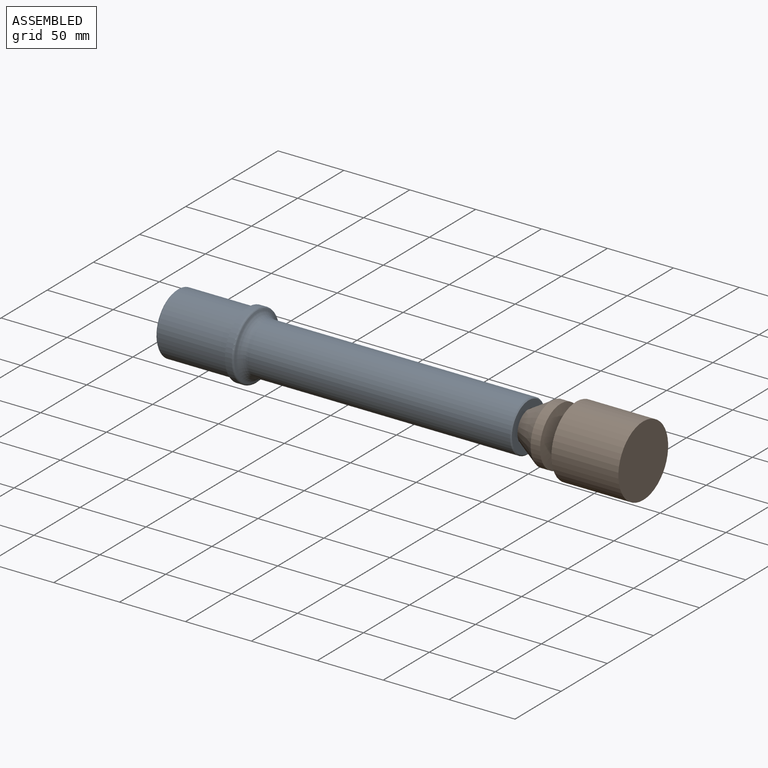
[diagram: assembled view]
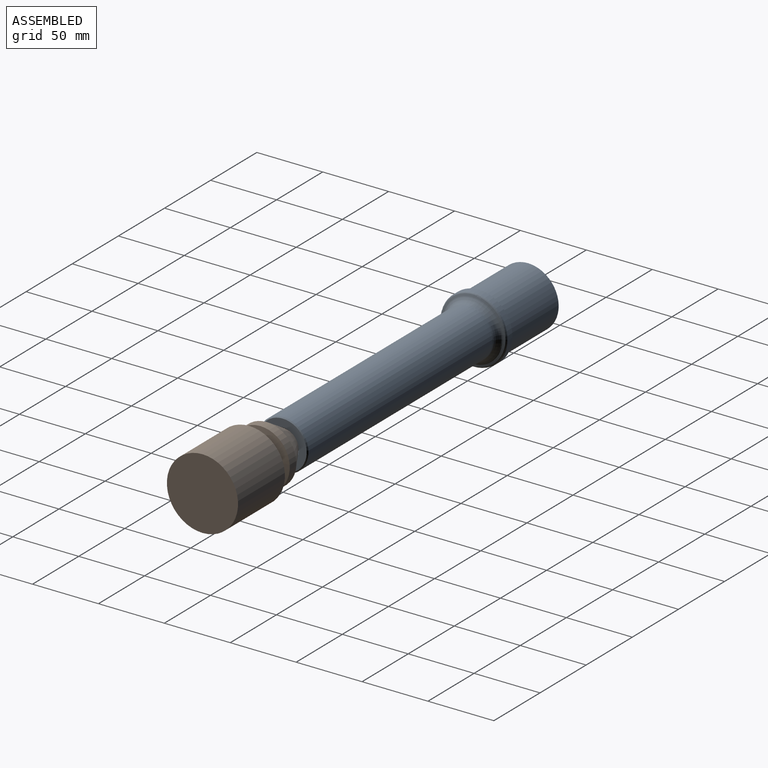
[diagram: assembled view, second angle]
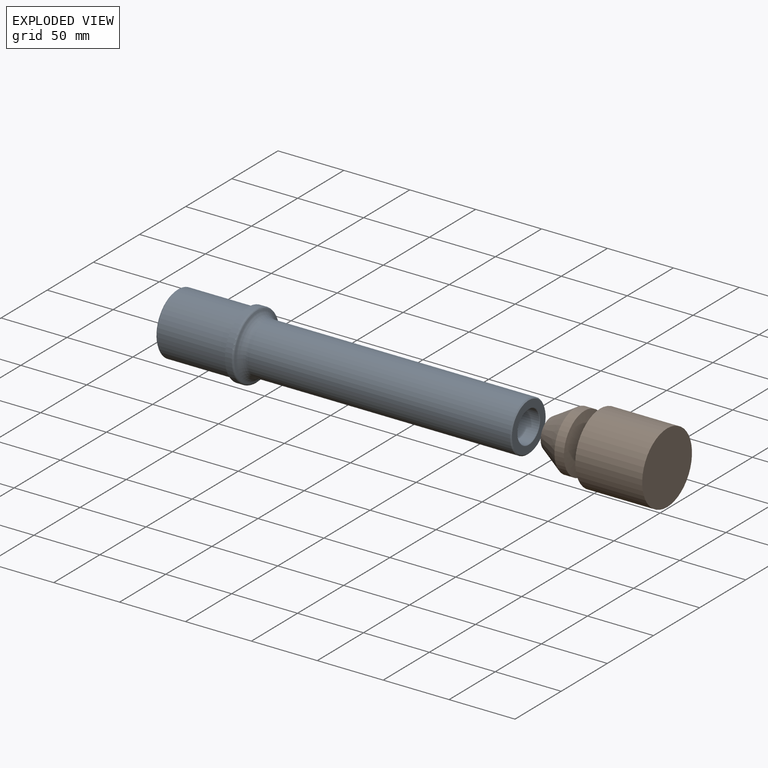
[diagram: exploded view]
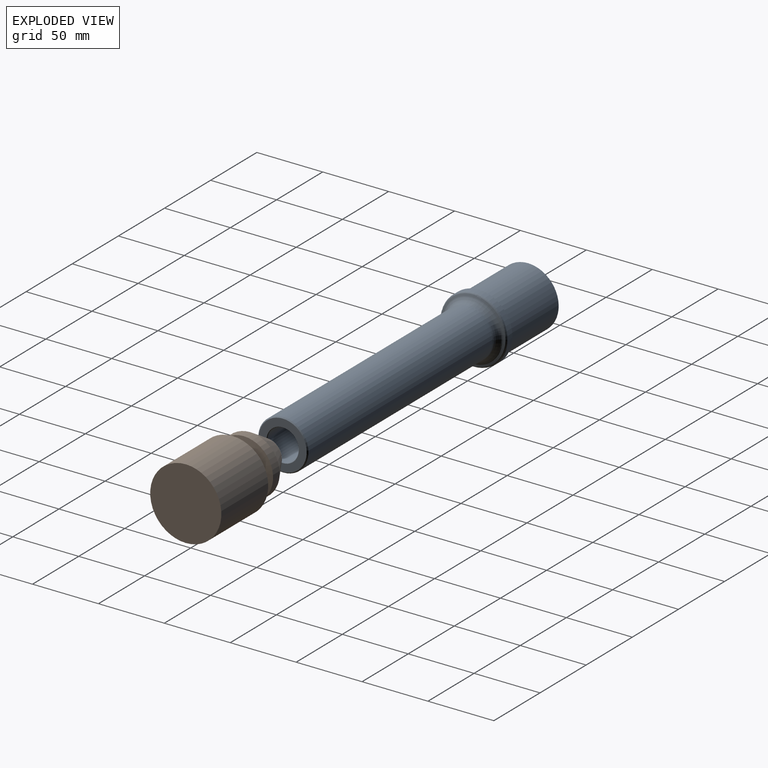
[diagram: exploded view, second angle]
ASSEMBLY  parts=2 mates=2
PART A: 14 faces, bbox 55x55x266.7 mm
  f0: plane 45.73x44.9mm, normal (0,0,-1), area 1583mm2, adj f1
  f1: cone r=22.84mm half-angle=45deg, axis (0,0,1), area 161.1mm2, adj f0,f2
  f2: cylinder r=23.24mm len=53.18mm, axis (0,0,-1), area 7765.9mm2, adj f1,f3
  f3: plane 51.74x50.8mm, normal (0,0,-1), area 329.9mm2, adj f2,f4
  f4: cylinder r=25.4mm len=50.8mm, axis (0,0,-1), area 785.7mm2, adj f3,f6
  f5: plane 24.25x23.81mm, normal (0,0,1), area 445.3mm2, adj f7
  f6: torus R=23.81mm, axis (0,0,-1), area 340.8mm2, adj f4,f8
  f7: cylinder r=11.91mm len=75.82mm, axis (0,0,-1), area 5672mm2, adj f5,f12,f13
  f8: torus R=25.4mm, axis (0,0,1), area 1139.6mm2, adj f6,f10
  f9: plane 37.19x36.51mm, normal (0,0,1), area 572.8mm2, adj f11,f12,f13
  f10: cylinder r=19.05mm len=199.23mm, axis (0,0,1), area 23846.9mm2, adj f8,f11
  f11: cone r=18.65mm half-angle=45deg, axis (0,0,-1), area 131.6mm2, adj f9,f10
  f12: cone r=11.91mm half-angle=45deg, axis (0,0,1), area 20.5mm2, adj f7,f9,f13
  f13: cone r=11.91mm half-angle=45deg, axis (0,0,1), area 20.5mm2, adj f7,f9,f12
PART B: 10 faces, bbox 88x54x54 mm
  f0: plane 22.61x22.61mm, normal (-1,0,0), area 401.4mm2, adj f9
  f1: plane 53.98x53.98mm, normal (1,0,0), area 2288.1mm2, adj f2
  f2: cylinder r=26.99mm len=53.98mm, axis (-1,0,0), area 8614mm2, adj f1,f3
  f3: plane 53.98x53.98mm, normal (-1,0,0), area 1798.5mm2, adj f2,f4
  f4: cylinder r=12.48mm len=24.97mm, axis (-1,0,0), area 374.6mm2, adj f3,f5
  f5: plane 24.97x24.97mm, normal (-1,0,0), area 362.9mm2, adj f4,f6
  f6: cylinder r=6.35mm len=12.7mm, axis (-1,0,0), area 180.4mm2, adj f5,f7
  f7: cone r=22.38mm half-angle=81deg, axis (-1,0,0), area 1464.5mm2, adj f6,f8
  f8: cylinder r=22.38mm len=44.75mm, axis (-1,0,0), area 1007.1mm2, adj f7,f9
  f9: cone r=11.3mm half-angle=31.3deg, axis (1,0,0), area 2257.6mm2, adj f0,f8
PLACE A rot(axis=(0,1,0),90deg) t=(-132.97,-4.76,4.76)mm
PLACE B rot(axis=(0,1,0),0deg) t=(-0.79,0,0)mm
MATE fastened A.f1 <-> B.f2  axis (-1,0,0) through (0,0,0)mm
MATE slider A.f1 <-> B.f2  axis (-1,0,0) through (0,0,0)mm
